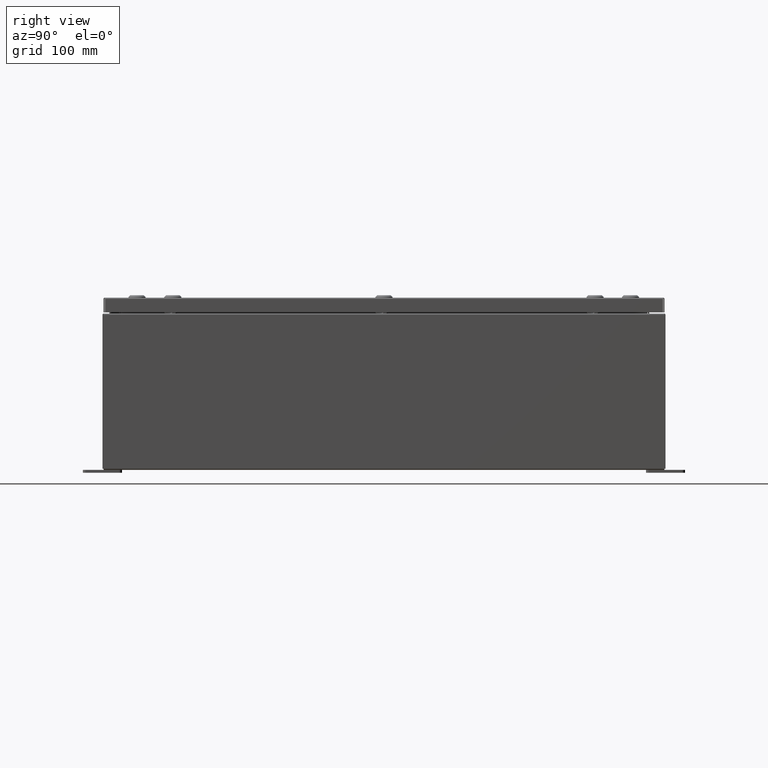
[diagram: clean part render]
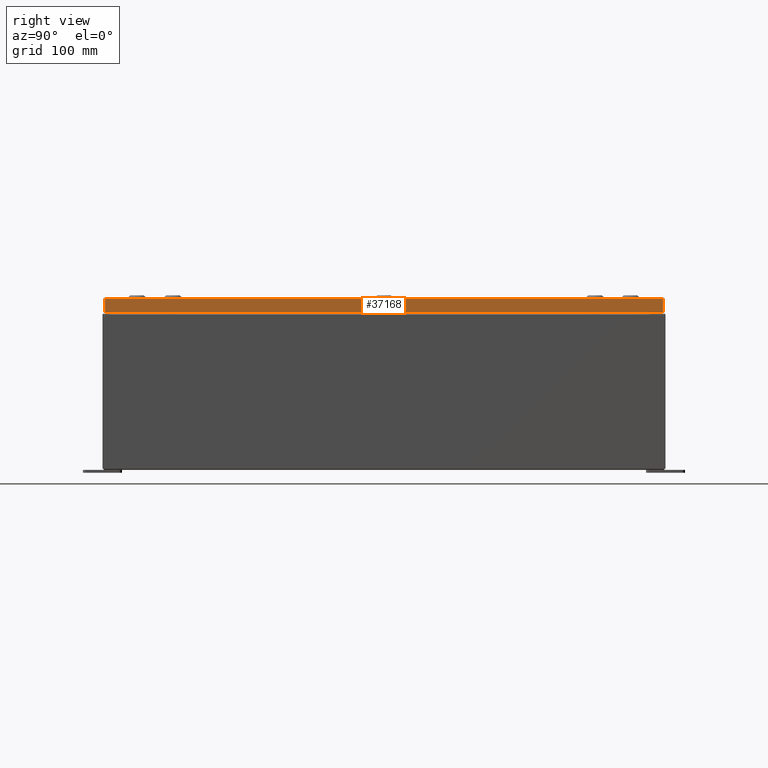
[diagram: same view with one face highlighted and labeled with its STEP entity id]
A machine part, right view. The second image highlights one B-rep face of the part: STEP entity #37168.
In plain terms, the highlighted planar face has unit normal (1, 0, 0).
Its self-contained STEP definition (entity closure, byte-faithful):
#679 = EDGE_LOOP ( 'NONE', ( #14820, #45613, #8674, #40825 ) ) ;
#3186 = VECTOR ( 'NONE', #10986, 39.37007874015748100 ) ;
#3704 = VERTEX_POINT ( 'NONE', #54933 ) ;
#6992 = EDGE_CURVE ( 'NONE', #51621, #52567, #22520, .T. ) ;
#8674 = ORIENTED_EDGE ( 'NONE', *, *, #21188, .T. ) ;
#10986 = DIRECTION ( 'NONE',  ( -2.532419924601866100E-015, -6.982962677686265900E-015, 1.000000000000000000 ) ) ;
#11165 = LINE ( 'NONE', #58011, #49273 ) ;
#11615 = VECTOR ( 'NONE', #17405, 39.37007874015748100 ) ;
#14820 = ORIENTED_EDGE ( 'NONE', *, *, #59243, .F. ) ;
#15976 = VERTEX_POINT ( 'NONE', #17314 ) ;
#16540 = LINE ( 'NONE', #35822, #3186 ) ;
#17314 = CARTESIAN_POINT ( 'NONE',  ( 11.93750000000000000, 17.84865786437627100, -0.08770000000000008300 ) ) ;
#17405 = DIRECTION ( 'NONE',  ( -2.532419924601866100E-015, -6.982962677686265900E-015, 1.000000000000000000 ) ) ;
#18469 = FACE_OUTER_BOUND ( 'NONE', #679, .T. ) ;
#21188 = EDGE_CURVE ( 'NONE', #51621, #15976, #38081, .T. ) ;
#22520 = LINE ( 'NONE', #45321, #60618 ) ;
#23888 = PLANE ( 'NONE',  #49803 ) ;
#25353 = CARTESIAN_POINT ( 'NONE',  ( 11.93750000000000200, 17.84865786437627800, -0.9376999999999997600 ) ) ;
#27407 = CARTESIAN_POINT ( 'NONE',  ( 11.93750000000000000, 17.84865786437627500, 1.551280882196773500E-013 ) ) ;
#28849 = DIRECTION ( 'NONE',  ( 1.000000000000000000, 0.0000000000000000000, 2.532419924601866100E-015 ) ) ;
#35822 = CARTESIAN_POINT ( 'NONE',  ( 11.93750000000000000, -17.84865786437626800, -0.07469999999999980800 ) ) ;
#37168 = ADVANCED_FACE ( 'NONE', ( #18469 ), #23888, .T. ) ;
#38081 = LINE ( 'NONE', #27407, #11615 ) ;
#40825 = ORIENTED_EDGE ( 'NONE', *, *, #49404, .T. ) ;
#42991 = DIRECTION ( 'NONE',  ( 0.0000000000000000000, -1.000000000000000000, 0.0000000000000000000 ) ) ;
#45321 = CARTESIAN_POINT ( 'NONE',  ( 11.93750000000000200, -17.93749999999999600, -0.9376999999999997600 ) ) ;
#45613 = ORIENTED_EDGE ( 'NONE', *, *, #6992, .F. ) ;
#47017 = DIRECTION ( 'NONE',  ( 0.0000000000000000000, -1.000000000000000000, 0.0000000000000000000 ) ) ;
#48598 = CARTESIAN_POINT ( 'NONE',  ( 11.93750000000000000, 0.0000000000000000000, 3.049157650594635900E-014 ) ) ;
#49273 = VECTOR ( 'NONE', #42991, 39.37007874015748100 ) ;
#49404 = EDGE_CURVE ( 'NONE', #15976, #3704, #11165, .T. ) ;
#49803 = AXIS2_PLACEMENT_3D ( 'NONE', #48598, #28849, #63566 ) ;
#51065 = CARTESIAN_POINT ( 'NONE',  ( 11.93750000000000200, -17.84865786437626100, -0.9376999999999997600 ) ) ;
#51621 = VERTEX_POINT ( 'NONE', #25353 ) ;
#52567 = VERTEX_POINT ( 'NONE', #51065 ) ;
#54933 = CARTESIAN_POINT ( 'NONE',  ( 11.93750000000000000, -17.84865786437626800, -0.08770000000000008300 ) ) ;
#58011 = CARTESIAN_POINT ( 'NONE',  ( 11.93750000000000000, 0.0000000000000000000, -0.08770000000000008300 ) ) ;
#59243 = EDGE_CURVE ( 'NONE', #52567, #3704, #16540, .T. ) ;
#60618 = VECTOR ( 'NONE', #47017, 39.37007874015748100 ) ;
#63566 = DIRECTION ( 'NONE',  ( 2.532419924601866100E-015, 0.0000000000000000000, -1.000000000000000000 ) ) ;